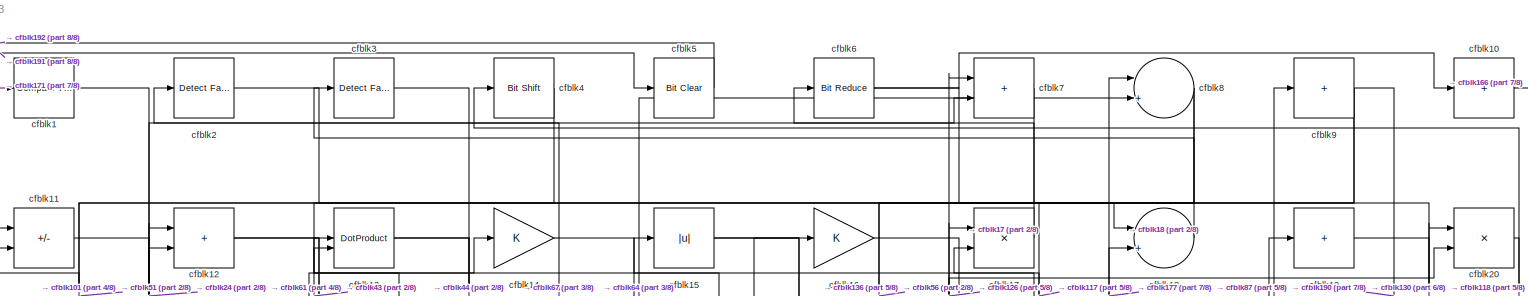
[diagram: root canvas - part 1/8, full width, top band]
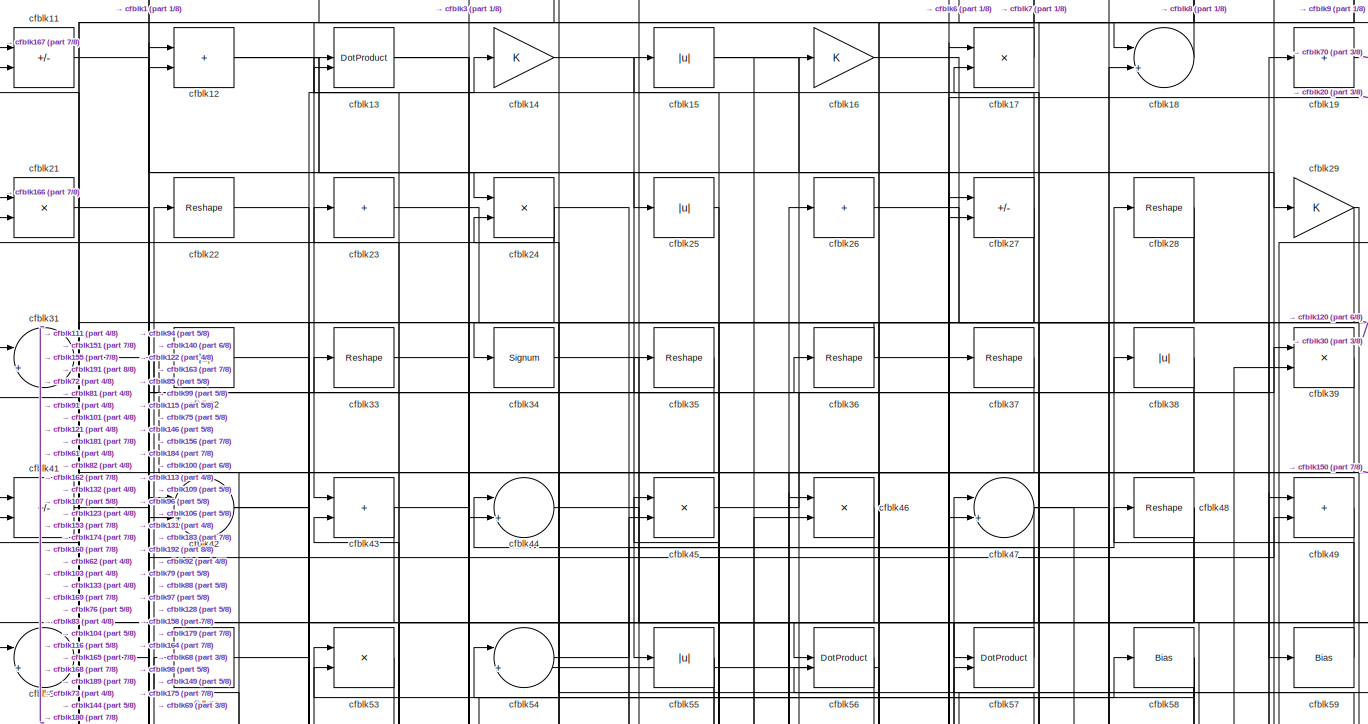
[diagram: root canvas - part 2/8, full width, top band]
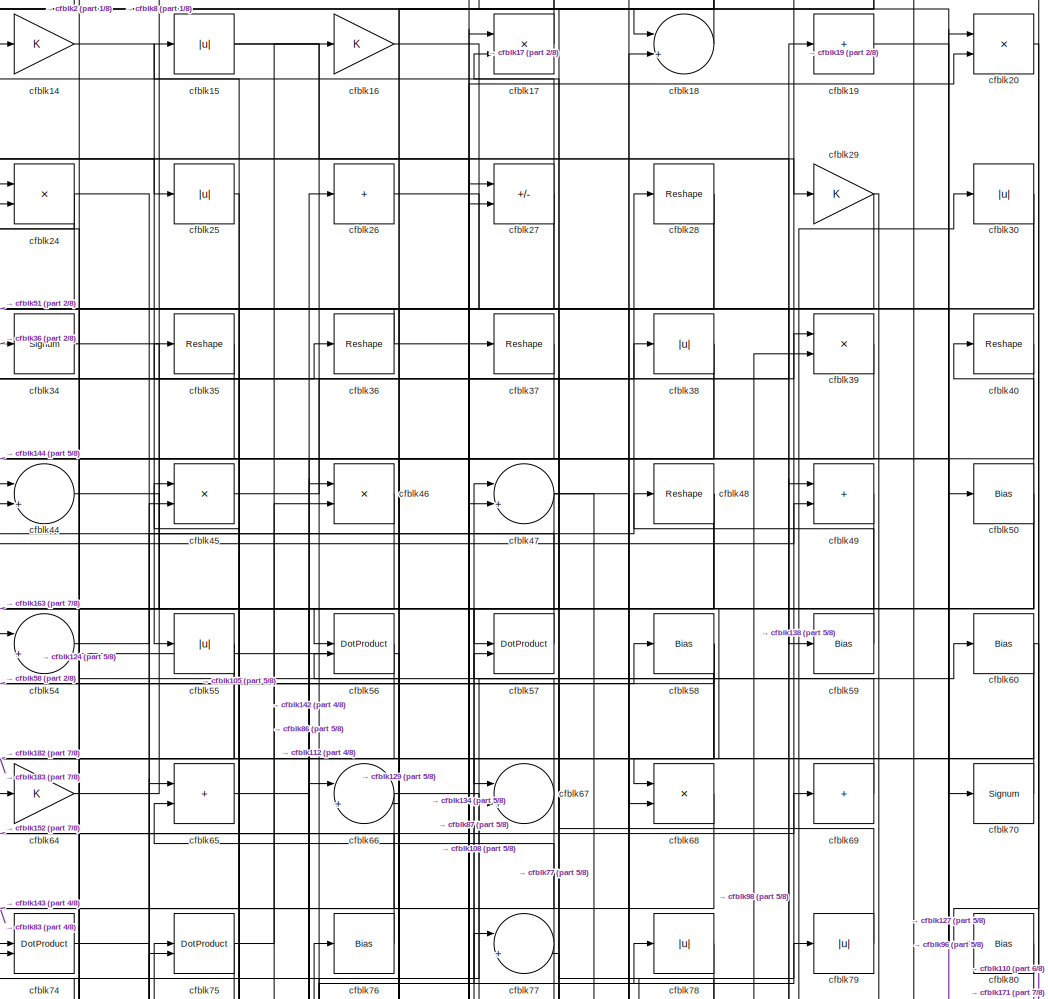
[diagram: root canvas - part 3/8, top center region]
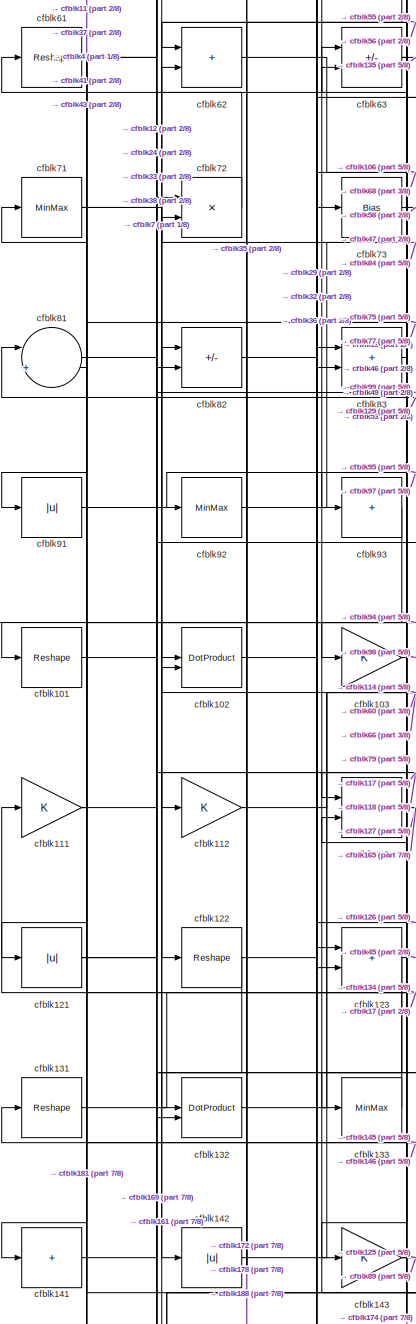
[diagram: root canvas - part 4/8, middle left region]
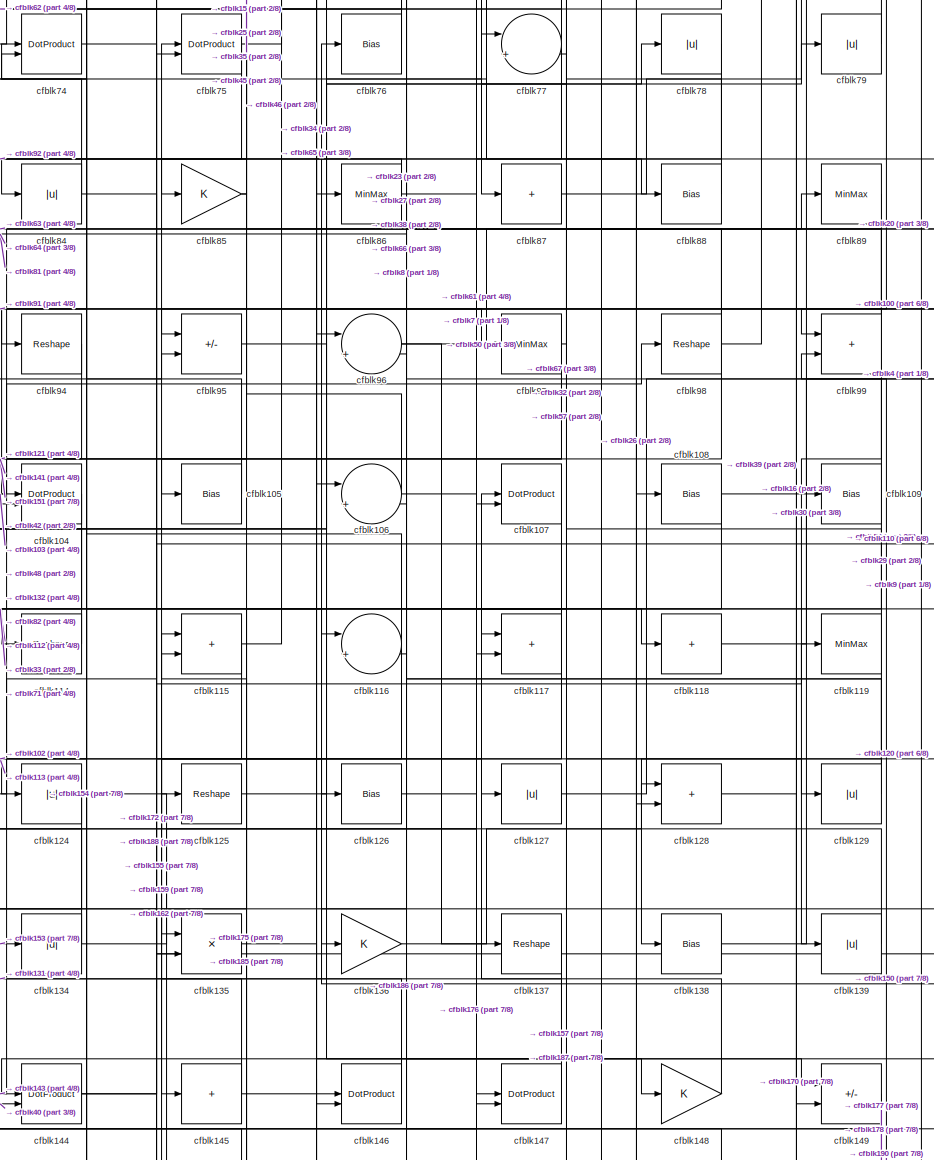
[diagram: root canvas - part 5/8, central region]
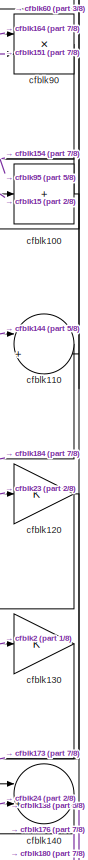
[diagram: root canvas - part 6/8, middle right region]
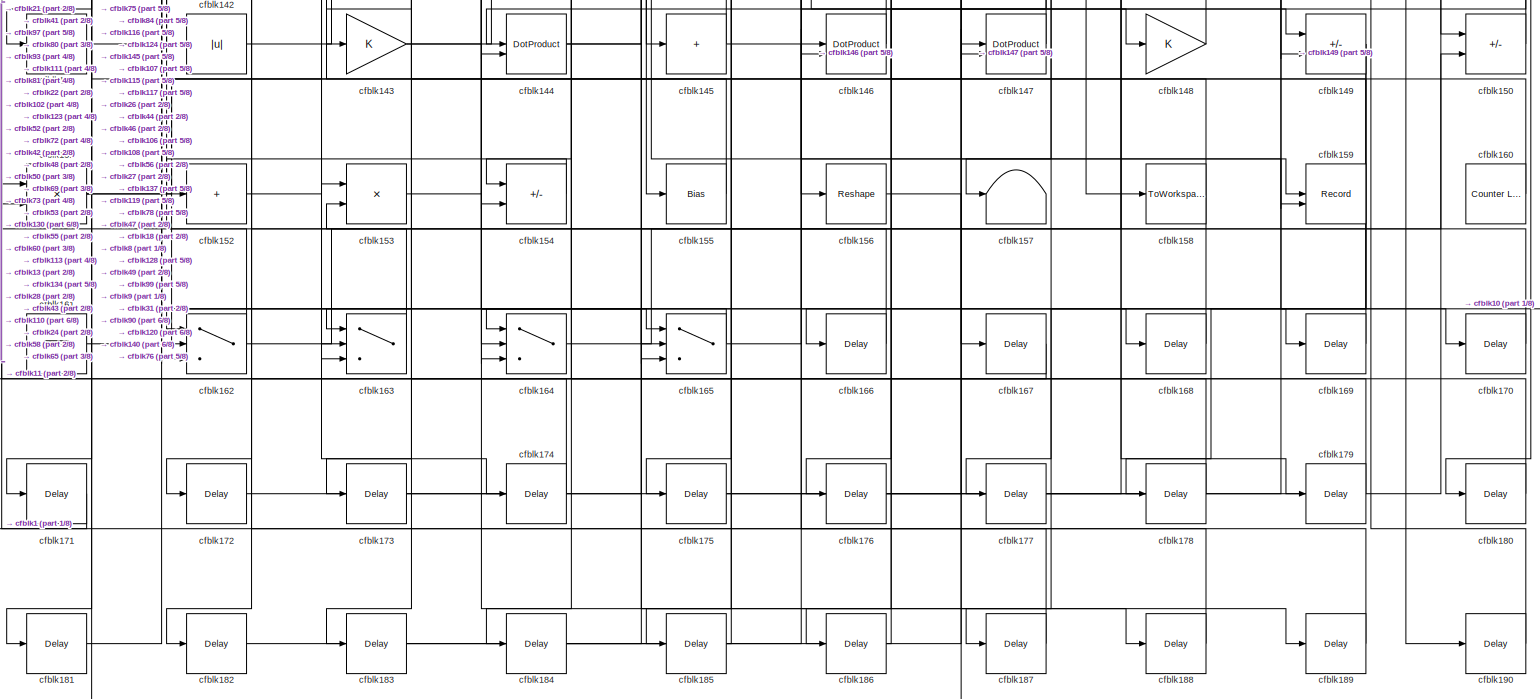
[diagram: root canvas - part 7/8, full width, bottom band]
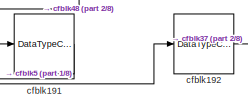
[diagram: root canvas - part 8/8, bottom left region]
MODEL slx_9bc3e9fb2bc3
KIND model
CONFIG AbsTol = auto
CONFIG EnableMultiTasking = off
CONFIG FixedStep = auto
CONFIG MaxStep = auto
CONFIG MinStep = auto
CONFIG RelTol = 1e-3
CONFIG SampleTimeConstraint = Unconstrained
CONFIG SolverName = VariableStepAuto
CONFIG StartTime = 0.0
CONFIG StopTime = 10.0
BLOCK [Reference] cfblk1  REF=hdlsllib/Logic and Bit
Operations/Compare
To Zero
  SourceBlock = hdlsllib/Logic and Bit\nOperations/Compare\nTo Zero
  SourceType = Compare To Zero
BLOCK [Sum] cfblk10
  IconShape = rectangular
  Inputs = +
BLOCK [Sum] cfblk100
  IconShape = rectangular
  Inputs = +
BLOCK [Reshape] cfblk101
BLOCK [DotProduct] cfblk102
  OutDataTypeStr = Inherit: Inherit via internal rule
BLOCK [Gain] cfblk103
BLOCK [DotProduct] cfblk104
  OutDataTypeStr = Inherit: Inherit via internal rule
BLOCK [Bias] cfblk105
  Bias = 0.0
  SaturateOnIntegerOverflow = off
BLOCK [Sum] cfblk106
  Inputs = |++
BLOCK [DotProduct] cfblk107
  OutDataTypeStr = Inherit: Inherit via internal rule
BLOCK [Bias] cfblk108
  Bias = 0.0
  SaturateOnIntegerOverflow = off
BLOCK [Bias] cfblk109
  Bias = 0.0
  SaturateOnIntegerOverflow = off
BLOCK [Sum] cfblk11
  IconShape = rectangular
  Inputs = +-
BLOCK [Sum] cfblk110
  Inputs = |++
BLOCK [Gain] cfblk111
BLOCK [Gain] cfblk112
BLOCK [Sum] cfblk113
  IconShape = rectangular
BLOCK [Reshape] cfblk114
BLOCK [Sum] cfblk115
  IconShape = rectangular
BLOCK [Sum] cfblk116
  Inputs = |++
BLOCK [Sum] cfblk117
  IconShape = rectangular
BLOCK [Sum] cfblk118
  IconShape = rectangular
  Inputs = +
BLOCK [MinMax] cfblk119
BLOCK [Sum] cfblk12
  IconShape = rectangular
BLOCK [Gain] cfblk120
BLOCK [Abs] cfblk121
  SaturateOnIntegerOverflow = off
BLOCK [Reshape] cfblk122
BLOCK [Sum] cfblk123
  IconShape = rectangular
BLOCK [Abs] cfblk124
  SaturateOnIntegerOverflow = off
BLOCK [Reshape] cfblk125
BLOCK [Bias] cfblk126
  Bias = 0.0
  SaturateOnIntegerOverflow = off
BLOCK [Abs] cfblk127
  SaturateOnIntegerOverflow = off
BLOCK [Sum] cfblk128
  IconShape = rectangular
BLOCK [Abs] cfblk129
  SaturateOnIntegerOverflow = off
BLOCK [DotProduct] cfblk13
  OutDataTypeStr = Inherit: Inherit via internal rule
BLOCK [Gain] cfblk130
BLOCK [Reshape] cfblk131
BLOCK [DotProduct] cfblk132
  OutDataTypeStr = Inherit: Inherit via internal rule
BLOCK [MinMax] cfblk133
BLOCK [Abs] cfblk134
  SaturateOnIntegerOverflow = off
BLOCK [Product] cfblk135
  Inputs = */
  RndMeth = Zero
  SaturateOnIntegerOverflow = on
BLOCK [Gain] cfblk136
BLOCK [Reshape] cfblk137
BLOCK [Bias] cfblk138
  Bias = 0.0
  SaturateOnIntegerOverflow = off
BLOCK [Abs] cfblk139
  SaturateOnIntegerOverflow = off
BLOCK [Gain] cfblk14
BLOCK [Sum] cfblk140
  Inputs = |++
BLOCK [Sum] cfblk141
  IconShape = rectangular
  Inputs = +
BLOCK [Abs] cfblk142
  SaturateOnIntegerOverflow = off
BLOCK [Gain] cfblk143
BLOCK [DotProduct] cfblk144
  OutDataTypeStr = Inherit: Inherit via internal rule
BLOCK [Sum] cfblk145
  IconShape = rectangular
  Inputs = +
BLOCK [DotProduct] cfblk146
  OutDataTypeStr = Inherit: Inherit via internal rule
BLOCK [DotProduct] cfblk147
  OutDataTypeStr = Inherit: Inherit via internal rule
BLOCK [Gain] cfblk148
BLOCK [Sum] cfblk149
  IconShape = rectangular
  Inputs = +-
BLOCK [Abs] cfblk15
  SaturateOnIntegerOverflow = off
BLOCK [Sum] cfblk150
  IconShape = rectangular
  Inputs = +-
BLOCK [Product] cfblk151
  Inputs = */
  RndMeth = Zero
  SaturateOnIntegerOverflow = on
BLOCK [Sum] cfblk152
  IconShape = rectangular
  Inputs = +
BLOCK [Product] cfblk153
  Inputs = */
  RndMeth = Zero
  SaturateOnIntegerOverflow = on
BLOCK [Sum] cfblk154
  IconShape = rectangular
  Inputs = +-
BLOCK [Bias] cfblk155
  Bias = 0.0
  SaturateOnIntegerOverflow = off
BLOCK [Reshape] cfblk156
BLOCK [Terminator] cfblk157
BLOCK [ToWorkspace] cfblk158
  MaxDataPoints = inf
  SampleTime = -1
  SaveFormat = Timeseries
  VariableName = simout
BLOCK [Record] cfblk159
  CompatibilityTag = XY
  FileSettingsInternal = {"entries":[{"content":{"excelSettings":{"content":{},"type":"Streamout.ExcelSettings"}},"type":"Streamout.FileSettingStorage","uuid":""}],"packageUris":["http:\/\/schema.mathworks.com\/mf0\/streamout_blocks\/R2020a"],"version":"1.0"}
  Layout = [1 1]
  SignalsInternal = {"entries":[{"content":{"signals":[{"content":{"blockPath":[],"dimensions":[1],"domain":"","lineColor":"#a2142f","plots":[1],"port":1,"signalID":2593,"signalName":"XY Graph:1"},"type":"RecordBlkView.Signal","uuid":""},{"content":{"blockPath":[],"dimensions":[1],"domain":"","lineColor":"#139fff","plots":[1],"port":2,"signalID":2596,"signalName":"XY Graph:2"},"type":"RecordBlkView.Signal","uuid":""}...<+146ch>
  VisualizationBindings = {"xyplotplugin":{"info":[{"series":[{"bindingParametersList":[{"parameter":"X-Axis","signalID":2593,"signalName":"XY Graph:1"},{"parameter":"Y-Axis","signalID":2596,"signalName":"XY Graph:2"}],"seriesID":62182}],"subplotID":1}]}}
  st = -1
BLOCK [Gain] cfblk16
BLOCK [Reference] cfblk160  REF=hdlsllib/Sources/Counter
Limited
  SourceBlock = hdlsllib/Sources/Counter\nLimited
  SourceType = Counter Limited
BLOCK [Ground] cfblk161
BLOCK [Switch] cfblk162
  InputSameDT = off
  SaturateOnIntegerOverflow = off
BLOCK [Switch] cfblk163
  InputSameDT = off
  SaturateOnIntegerOverflow = off
BLOCK [Switch] cfblk164
  InputSameDT = off
  SaturateOnIntegerOverflow = off
BLOCK [Switch] cfblk165
  InputSameDT = off
  SaturateOnIntegerOverflow = off
BLOCK [Delay] cfblk166
  InputPortMap = u0
  SampleTime = 1
BLOCK [Delay] cfblk167
  InputPortMap = u0
  SampleTime = 1
BLOCK [Delay] cfblk168
  InputPortMap = u0
  SampleTime = 1
BLOCK [Delay] cfblk169
  InputPortMap = u0
  SampleTime = 1
BLOCK [Product] cfblk17
  Inputs = */
  RndMeth = Zero
  SaturateOnIntegerOverflow = on
BLOCK [Delay] cfblk170
  InputPortMap = u0
  SampleTime = 1
BLOCK [Delay] cfblk171
  InputPortMap = u0
  SampleTime = 1
BLOCK [Delay] cfblk172
  InputPortMap = u0
  SampleTime = 1
BLOCK [Delay] cfblk173
  InputPortMap = u0
  SampleTime = 1
BLOCK [Delay] cfblk174
  InputPortMap = u0
  SampleTime = 1
BLOCK [Delay] cfblk175
  InputPortMap = u0
  SampleTime = 1
BLOCK [Delay] cfblk176
  InputPortMap = u0
  SampleTime = 1
BLOCK [Delay] cfblk177
  InputPortMap = u0
  SampleTime = 1
BLOCK [Delay] cfblk178
  InputPortMap = u0
  SampleTime = 1
BLOCK [Delay] cfblk179
  InputPortMap = u0
  SampleTime = 1
BLOCK [Sum] cfblk18
  Inputs = |++
BLOCK [Delay] cfblk180
  InputPortMap = u0
  SampleTime = 1
BLOCK [Delay] cfblk181
  InputPortMap = u0
  SampleTime = 1
BLOCK [Delay] cfblk182
  InputPortMap = u0
  SampleTime = 1
BLOCK [Delay] cfblk183
  InputPortMap = u0
  SampleTime = 1
BLOCK [Delay] cfblk184
  InputPortMap = u0
  SampleTime = 1
BLOCK [Delay] cfblk185
  InputPortMap = u0
  SampleTime = 1
BLOCK [Delay] cfblk186
  InputPortMap = u0
  SampleTime = 1
BLOCK [Delay] cfblk187
  InputPortMap = u0
  SampleTime = 1
BLOCK [Delay] cfblk188
  InputPortMap = u0
  SampleTime = 1
BLOCK [Delay] cfblk189
  InputPortMap = u0
  SampleTime = 1
BLOCK [Sum] cfblk19
  IconShape = rectangular
  Inputs = +
BLOCK [Delay] cfblk190
  InputPortMap = u0
  SampleTime = 1
BLOCK [DataTypeConversion] cfblk191
  OutDataTypeStr = boolean
  RndMeth = Floor
  SaturateOnIntegerOverflow = off
BLOCK [DataTypeConversion] cfblk192
  OutDataTypeStr = uint8
  RndMeth = Floor
  SaturateOnIntegerOverflow = off
BLOCK [Reference] cfblk2  REF=hdlsllib/Logic and Bit
Operations/Detect Fall
Negative
  SourceBlock = hdlsllib/Logic and Bit\nOperations/Detect Fall\nNegative
  SourceType = Detect Fall Negative
BLOCK [Product] cfblk20
  Inputs = */
  RndMeth = Zero
  SaturateOnIntegerOverflow = on
BLOCK [Product] cfblk21
  Inputs = */
  RndMeth = Zero
  SaturateOnIntegerOverflow = on
BLOCK [Reshape] cfblk22
BLOCK [Sum] cfblk23
  IconShape = rectangular
  Inputs = +
BLOCK [Product] cfblk24
  Inputs = */
  RndMeth = Zero
  SaturateOnIntegerOverflow = on
BLOCK [Abs] cfblk25
  SaturateOnIntegerOverflow = off
BLOCK [Sum] cfblk26
  IconShape = rectangular
  Inputs = +
BLOCK [Sum] cfblk27
  IconShape = rectangular
  Inputs = +-
BLOCK [Reshape] cfblk28
BLOCK [Gain] cfblk29
BLOCK [Reference] cfblk3  REF=hdlsllib/Logic and Bit
Operations/Detect Fall
Nonpositive
  SourceBlock = hdlsllib/Logic and Bit\nOperations/Detect Fall\nNonpositive
  SourceType = Detect Fall Nonpositive
BLOCK [Abs] cfblk30
  SaturateOnIntegerOverflow = off
BLOCK [Sum] cfblk31
  Inputs = |++
BLOCK [Abs] cfblk32
  SaturateOnIntegerOverflow = off
BLOCK [Reshape] cfblk33
BLOCK [Signum] cfblk34
BLOCK [Reshape] cfblk35
BLOCK [Reshape] cfblk36
BLOCK [Reshape] cfblk37
BLOCK [Abs] cfblk38
  SaturateOnIntegerOverflow = off
BLOCK [Product] cfblk39
  Inputs = */
  RndMeth = Zero
  SaturateOnIntegerOverflow = on
BLOCK [Reference] cfblk4  REF=hdlsllib/Logic and Bit
Operations/Bit Shift
  SourceBlock = hdlsllib/Logic and Bit\nOperations/Bit Shift
  SourceType = Bit Shift
BLOCK [Reshape] cfblk40
BLOCK [Sum] cfblk41
  IconShape = rectangular
  Inputs = +-
BLOCK [Sum] cfblk42
  Inputs = |++
BLOCK [Sum] cfblk43
  IconShape = rectangular
BLOCK [Sum] cfblk44
  Inputs = |++
BLOCK [Product] cfblk45
  Inputs = */
  RndMeth = Zero
  SaturateOnIntegerOverflow = on
BLOCK [Product] cfblk46
  Inputs = */
  RndMeth = Zero
  SaturateOnIntegerOverflow = on
BLOCK [Sum] cfblk47
  Inputs = |++
BLOCK [Reshape] cfblk48
BLOCK [Sum] cfblk49
  IconShape = rectangular
BLOCK [Reference] cfblk5  REF=simulink/Logic and Bit
Operations/Bit Clear
  LibrarySourceBlock = hdlsllib/Logic and Bit\nOperations/Bit Clear
  SourceBlock = simulink/Logic and Bit\nOperations/Bit Clear
  SourceType = Bit Clear
BLOCK [Bias] cfblk50
  Bias = 0.0
  SaturateOnIntegerOverflow = off
BLOCK [Sum] cfblk51
  Inputs = |++
BLOCK [Sum] cfblk52
  IconShape = rectangular
  Inputs = +
BLOCK [Product] cfblk53
  Inputs = */
  RndMeth = Zero
  SaturateOnIntegerOverflow = on
BLOCK [Sum] cfblk54
  Inputs = |++
BLOCK [Abs] cfblk55
  SaturateOnIntegerOverflow = off
BLOCK [DotProduct] cfblk56
  OutDataTypeStr = Inherit: Inherit via internal rule
BLOCK [DotProduct] cfblk57
  OutDataTypeStr = Inherit: Inherit via internal rule
BLOCK [Bias] cfblk58
  Bias = 0.0
  SaturateOnIntegerOverflow = off
BLOCK [Bias] cfblk59
  Bias = 0.0
  SaturateOnIntegerOverflow = off
BLOCK [Reference] cfblk6  REF=hdlsllib/Logic and Bit
Operations/Bit Reduce
  SourceBlock = hdlsllib/Logic and Bit\nOperations/Bit Reduce
  SourceType = Bit Reduce
BLOCK [Bias] cfblk60
  Bias = 0.0
  SaturateOnIntegerOverflow = off
BLOCK [Reshape] cfblk61
BLOCK [Sum] cfblk62
  IconShape = rectangular
BLOCK [Sum] cfblk63
  IconShape = rectangular
  Inputs = +-
BLOCK [Gain] cfblk64
BLOCK [Sum] cfblk65
  IconShape = rectangular
BLOCK [Sum] cfblk66
  Inputs = |++
BLOCK [Sum] cfblk67
  Inputs = |++
BLOCK [Product] cfblk68
  Inputs = */
  RndMeth = Zero
  SaturateOnIntegerOverflow = on
BLOCK [Sum] cfblk69
  IconShape = rectangular
  Inputs = +
BLOCK [Sum] cfblk7
  IconShape = rectangular
BLOCK [Signum] cfblk70
BLOCK [MinMax] cfblk71
BLOCK [Product] cfblk72
  Inputs = */
  RndMeth = Zero
  SaturateOnIntegerOverflow = on
BLOCK [Bias] cfblk73
  Bias = 0.0
  SaturateOnIntegerOverflow = off
BLOCK [DotProduct] cfblk74
  OutDataTypeStr = Inherit: Inherit via internal rule
BLOCK [DotProduct] cfblk75
  OutDataTypeStr = Inherit: Inherit via internal rule
BLOCK [Bias] cfblk76
  Bias = 0.0
  SaturateOnIntegerOverflow = off
BLOCK [Sum] cfblk77
  Inputs = |++
BLOCK [Abs] cfblk78
  SaturateOnIntegerOverflow = off
BLOCK [Abs] cfblk79
  SaturateOnIntegerOverflow = off
BLOCK [Sum] cfblk8
  Inputs = |++
BLOCK [Bias] cfblk80
  Bias = 0.0
  SaturateOnIntegerOverflow = off
BLOCK [Sum] cfblk81
  Inputs = |++
BLOCK [Sum] cfblk82
  IconShape = rectangular
  Inputs = +-
BLOCK [Sum] cfblk83
  IconShape = rectangular
BLOCK [Abs] cfblk84
  SaturateOnIntegerOverflow = off
BLOCK [Gain] cfblk85
BLOCK [MinMax] cfblk86
BLOCK [Sum] cfblk87
  IconShape = rectangular
  Inputs = +
BLOCK [Bias] cfblk88
  Bias = 0.0
  SaturateOnIntegerOverflow = off
BLOCK [MinMax] cfblk89
BLOCK [Sum] cfblk9
  IconShape = rectangular
  Inputs = +
BLOCK [Product] cfblk90
  Inputs = */
  RndMeth = Zero
  SaturateOnIntegerOverflow = on
BLOCK [Abs] cfblk91
  SaturateOnIntegerOverflow = off
BLOCK [MinMax] cfblk92
BLOCK [Sum] cfblk93
  IconShape = rectangular
  Inputs = +
BLOCK [Reshape] cfblk94
BLOCK [Sum] cfblk95
  IconShape = rectangular
  Inputs = +-
BLOCK [Sum] cfblk96
  Inputs = |++
BLOCK [MinMax] cfblk97
BLOCK [Reshape] cfblk98
BLOCK [Sum] cfblk99
  IconShape = rectangular
NET cfblk100:1 -> cfblk140:1, cfblk95:1
LINE cfblk101:1 -> cfblk12:1
LINE cfblk102:1 -> cfblk126:1
LINE cfblk103:1 -> cfblk98:1
LINE cfblk104:1 -> cfblk114:1
LINE cfblk105:1 -> cfblk74:1
NET cfblk106:1 -> cfblk35:1, cfblk39:1
LINE cfblk107:1 -> cfblk175:1
NET cfblk108:1 -> cfblk109:1, cfblk186:1
NET cfblk109:1 -> cfblk117:2, cfblk54:2
LINE cfblk10:1 -> cfblk166:1
LINE cfblk110:1 -> cfblk184:1
NET cfblk111:1 -> cfblk165:3, cfblk41:2
LINE cfblk112:1 -> cfblk60:1
NET cfblk113:1 -> cfblk127:1, cfblk165:2
LINE cfblk114:1 -> cfblk82:1
NET cfblk115:1 -> cfblk145:1, cfblk46:2
NET cfblk116:1 -> cfblk155:1, cfblk74:2
NET cfblk117:1 -> cfblk112:1, cfblk185:1
LINE cfblk118:1 -> cfblk4:1
NET cfblk119:1 -> cfblk157:1, cfblk77:2
LINE cfblk11:1 -> cfblk29:1
NET cfblk120:1 -> cfblk138:1, cfblk180:1
NET cfblk121:1 -> cfblk33:1, cfblk63:1
NET cfblk122:1 -> cfblk132:2, cfblk36:1
NET cfblk123:1 -> cfblk172:1, cfblk45:2
NET cfblk124:1 -> cfblk159:1, cfblk162:3
LINE cfblk125:1 -> cfblk78:1
LINE cfblk126:1 -> cfblk7:1
LINE cfblk127:1 -> cfblk50:1
LINE cfblk128:1 -> cfblk170:1
NET cfblk129:1 -> cfblk64:1, cfblk81:1
NET cfblk12:1 -> cfblk47:2, cfblk55:1
LINE cfblk130:1 -> cfblk173:1
LINE cfblk131:1 -> cfblk17:1
LINE cfblk132:1 -> cfblk79:1
LINE cfblk133:1 -> cfblk111:1
NET cfblk134:1 -> cfblk61:1, cfblk67:2
LINE cfblk135:1 -> cfblk149:1
LINE cfblk136:1 -> cfblk128:1
LINE cfblk137:1 -> cfblk154:1
LINE cfblk138:1 -> cfblk30:1
LINE cfblk139:1 -> cfblk115:1
NET cfblk13:1 -> cfblk165:1, cfblk189:1
LINE cfblk140:1 -> cfblk176:1
LINE cfblk141:1 -> cfblk72:1
LINE cfblk142:1 -> cfblk66:1
NET cfblk143:1 -> cfblk125:1, cfblk89:1
NET cfblk144:1 -> cfblk110:1, cfblk119:1
NET cfblk145:1 -> cfblk131:1, cfblk159:2
LINE cfblk146:1 -> cfblk71:1
LINE cfblk147:1 -> cfblk75:1
LINE cfblk148:1 -> cfblk107:1
NET cfblk149:1 -> cfblk177:1, cfblk178:1
LINE cfblk14:1 -> cfblk25:1
LINE cfblk150:1 -> cfblk76:1
NET cfblk151:1 -> cfblk27:1, cfblk31:2, cfblk90:2
LINE cfblk152:1 -> cfblk69:1
LINE cfblk153:1 -> cfblk134:1
LINE cfblk154:1 -> cfblk152:1
LINE cfblk155:1 -> cfblk31:1
LINE cfblk156:1 -> cfblk167:1
NET cfblk15:1 -> cfblk100:1, cfblk59:1
LINE cfblk160:1 -> cfblk53:1
LINE cfblk161:1 -> cfblk73:1
NET cfblk162:1 -> cfblk18:2, cfblk22:1
LINE cfblk163:1 -> cfblk52:1
LINE cfblk164:1 -> cfblk90:1
NET cfblk165:1 -> cfblk162:1, cfblk26:1
LINE cfblk166:1 -> cfblk21:1
LINE cfblk167:1 -> cfblk11:1
LINE cfblk168:1 -> cfblk56:2
LINE cfblk169:1 -> cfblk43:2
LINE cfblk16:1 -> cfblk149:2
LINE cfblk170:1 -> cfblk153:2
LINE cfblk171:1 -> cfblk1:1
LINE cfblk172:1 -> cfblk75:2
LINE cfblk173:1 -> cfblk150:2
LINE cfblk174:1 -> cfblk113:2
LINE cfblk175:1 -> cfblk49:1
LINE cfblk176:1 -> cfblk147:1
LINE cfblk177:1 -> cfblk8:1
LINE cfblk178:1 -> cfblk72:2
LINE cfblk179:1 -> cfblk41:1
LINE cfblk17:1 -> cfblk6:1
LINE cfblk180:1 -> cfblk24:2
LINE cfblk181:1 -> cfblk42:2
LINE cfblk182:1 -> cfblk65:1
LINE cfblk183:1 -> cfblk27:2
LINE cfblk184:1 -> cfblk46:1
LINE cfblk185:1 -> cfblk115:2
LINE cfblk186:1 -> cfblk106:2
LINE cfblk187:1 -> cfblk146:1
LINE cfblk188:1 -> cfblk102:2
LINE cfblk189:1 -> cfblk151:1
LINE cfblk18:1 -> cfblk3:1
LINE cfblk190:1 -> cfblk99:2
LINE cfblk191:1 -> cfblk5:1
LINE cfblk192:1 -> cfblk37:1
LINE cfblk19:1 -> cfblk70:1
LINE cfblk1:1 -> cfblk24:1
LINE cfblk20:1 -> cfblk80:1
LINE cfblk21:1 -> cfblk42:1
LINE cfblk22:1 -> cfblk174:1
LINE cfblk23:1 -> cfblk120:1
NET cfblk24:1 -> cfblk140:2, cfblk21:2, cfblk82:2
LINE cfblk25:1 -> cfblk85:1
LINE cfblk26:1 -> cfblk128:2
NET cfblk27:1 -> cfblk13:2, cfblk144:1, cfblk96:2
NET cfblk28:1 -> cfblk164:2, cfblk57:1
NET cfblk29:1 -> cfblk123:2, cfblk99:1
LINE cfblk2:1 -> cfblk130:1
NET cfblk30:1 -> cfblk105:1, cfblk51:1
LINE cfblk31:1 -> cfblk150:1
LINE cfblk32:1 -> cfblk83:1
LINE cfblk33:1 -> cfblk116:1
LINE cfblk34:1 -> cfblk96:1
LINE cfblk35:1 -> cfblk132:1
NET cfblk36:1 -> cfblk20:2, cfblk34:1
LINE cfblk37:1 -> cfblk81:2
NET cfblk38:1 -> cfblk116:2, cfblk94:1
LINE cfblk39:1 -> cfblk146:2
LINE cfblk3:1 -> cfblk44:2
LINE cfblk40:1 -> cfblk144:2
LINE cfblk41:1 -> cfblk12:2
NET cfblk42:1 -> cfblk107:2, cfblk153:1
NET cfblk43:1 -> cfblk168:1, cfblk91:1
LINE cfblk44:1 -> cfblk156:1
LINE cfblk45:1 -> cfblk19:1
LINE cfblk46:1 -> cfblk103:1
NET cfblk47:1 -> cfblk158:1, cfblk162:2, cfblk179:1
NET cfblk48:1 -> cfblk104:2, cfblk163:2, cfblk191:1
LINE cfblk49:1 -> cfblk133:1
LINE cfblk4:1 -> cfblk101:1
NET cfblk50:1 -> cfblk163:3, cfblk40:1, cfblk68:1, cfblk87:1
LINE cfblk51:1 -> cfblk49:2
LINE cfblk52:1 -> cfblk14:1
LINE cfblk53:1 -> cfblk62:1
LINE cfblk54:1 -> cfblk48:1
NET cfblk55:1 -> cfblk122:1, cfblk163:1
LINE cfblk56:1 -> cfblk113:1
LINE cfblk57:1 -> cfblk44:1
NET cfblk58:1 -> cfblk164:1, cfblk164:3, cfblk53:2, cfblk68:2
LINE cfblk59:1 -> cfblk28:1
LINE cfblk5:1 -> cfblk192:1
NET cfblk60:1 -> cfblk110:2, cfblk182:1, cfblk183:1
NET cfblk61:1 -> cfblk38:1, cfblk7:2
LINE cfblk62:1 -> cfblk106:1
NET cfblk63:1 -> cfblk135:2, cfblk93:1
LINE cfblk64:1 -> cfblk8:2
LINE cfblk65:1 -> cfblk86:1
NET cfblk66:1 -> cfblk108:1, cfblk143:1
NET cfblk67:1 -> cfblk124:1, cfblk2:1
LINE cfblk68:1 -> cfblk83:2
LINE cfblk69:1 -> cfblk17:2
NET cfblk6:1 -> cfblk10:1, cfblk18:1
LINE cfblk70:1 -> cfblk67:1
NET cfblk71:1 -> cfblk118:1, cfblk142:1
LINE cfblk72:1 -> cfblk11:2
LINE cfblk73:1 -> cfblk58:1
LINE cfblk74:1 -> cfblk129:1
NET cfblk75:1 -> cfblk102:1, cfblk16:1
LINE cfblk76:1 -> cfblk23:1
NET cfblk77:1 -> cfblk65:2, cfblk92:1
LINE cfblk78:1 -> cfblk187:1
LINE cfblk79:1 -> cfblk54:1
LINE cfblk7:1 -> cfblk56:1
LINE cfblk80:1 -> cfblk171:1
LINE cfblk81:1 -> cfblk169:1
LINE cfblk82:1 -> cfblk123:1
LINE cfblk83:1 -> cfblk13:1
NET cfblk84:1 -> cfblk188:1, cfblk62:2
NET cfblk85:1 -> cfblk135:1, cfblk15:1
NET cfblk86:1 -> cfblk84:1, cfblk88:1
LINE cfblk87:1 -> cfblk9:1
LINE cfblk88:1 -> cfblk32:1
LINE cfblk89:1 -> cfblk104:1
NET cfblk8:1 -> cfblk136:1, cfblk51:2
LINE cfblk90:1 -> cfblk154:2
NET cfblk91:1 -> cfblk95:2, cfblk97:1
LINE cfblk92:1 -> cfblk47:1
LINE cfblk93:1 -> cfblk181:1
LINE cfblk94:1 -> cfblk141:1
LINE cfblk95:1 -> cfblk148:1
NET cfblk96:1 -> cfblk137:1, cfblk20:1
NET cfblk97:1 -> cfblk121:1, cfblk151:2, cfblk57:2
NET cfblk98:1 -> cfblk147:2, cfblk39:2, cfblk66:2, cfblk77:1
NET cfblk99:1 -> cfblk139:1, cfblk45:1, cfblk63:2
NET cfblk9:1 -> cfblk117:1, cfblk190:1, cfblk43:1
note: NET lines group one-source signal fan-out (src -> all destinations, sorted); 1:1 wires keep LINE
